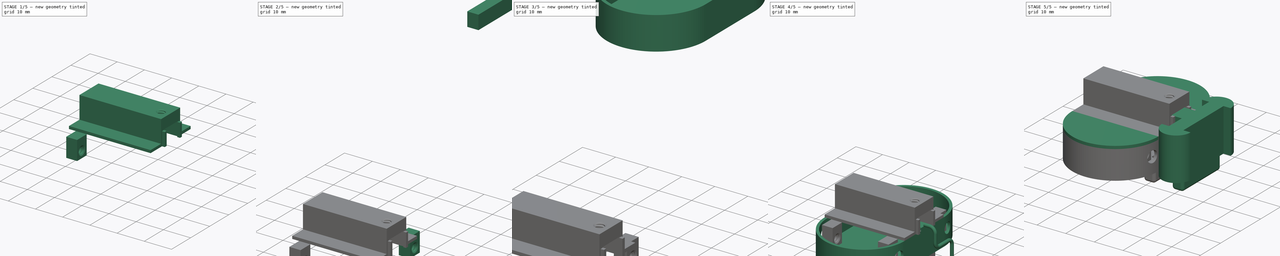
[diagram: build sequence overview — one tinted view per stage of 5, left to right]
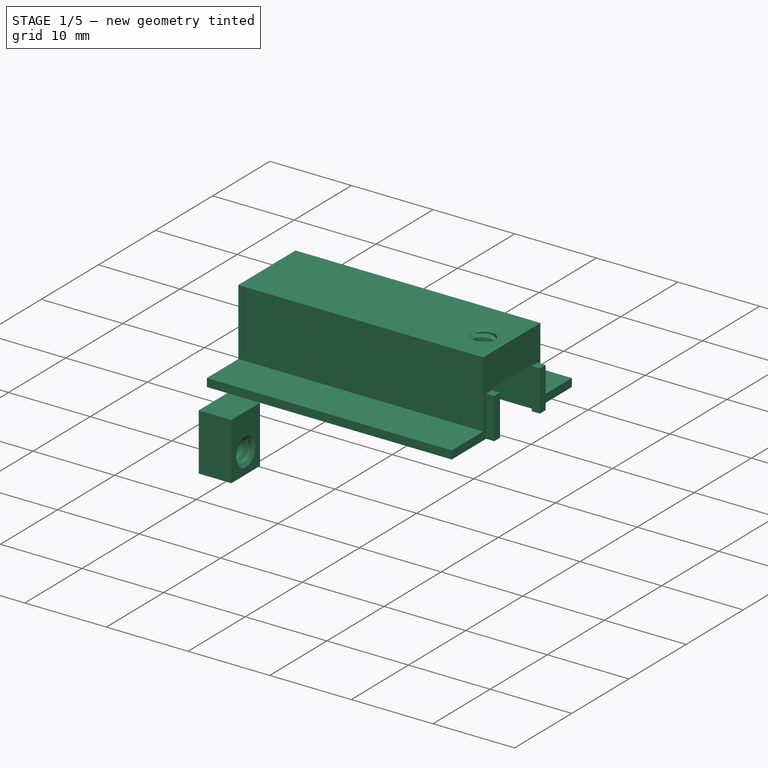
[diagram: stage 1 of 5 — iso view after this stage's code; geometry added in this stage tinted green]
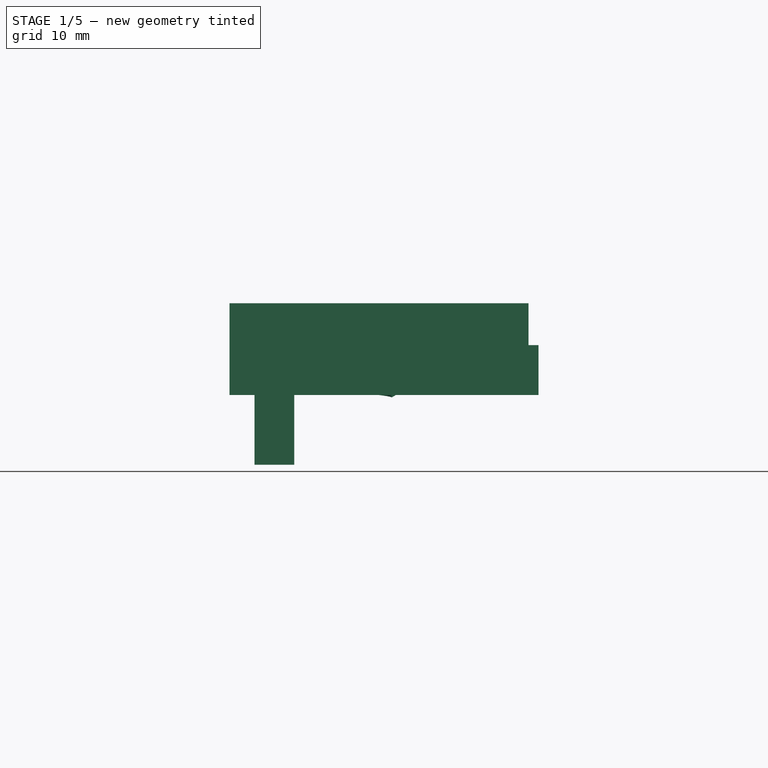
[diagram: stage 1 of 5 — front view after this stage's code; geometry added in this stage tinted green]
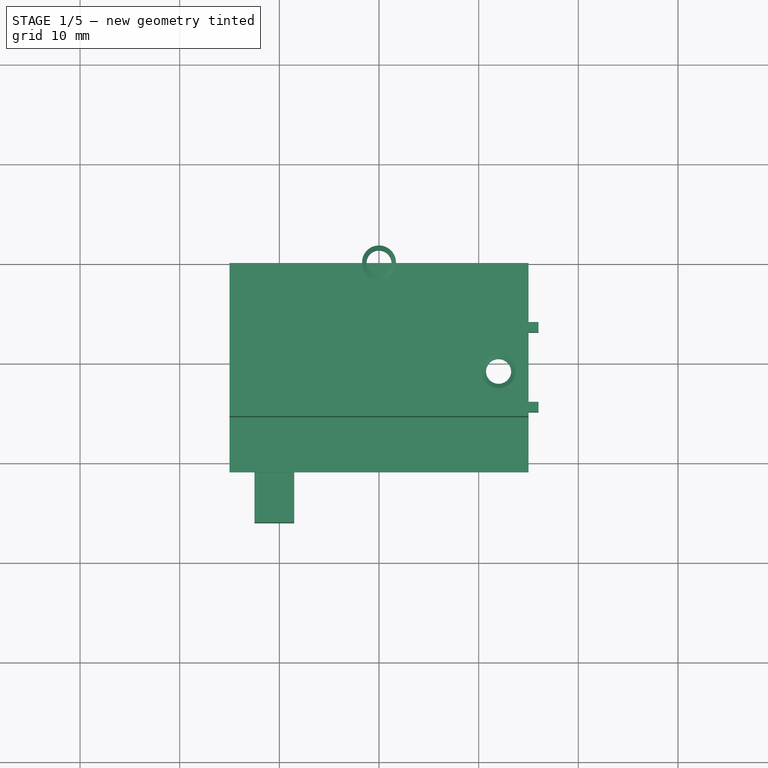
[diagram: stage 1 of 5 — top view after this stage's code; geometry added in this stage tinted green]
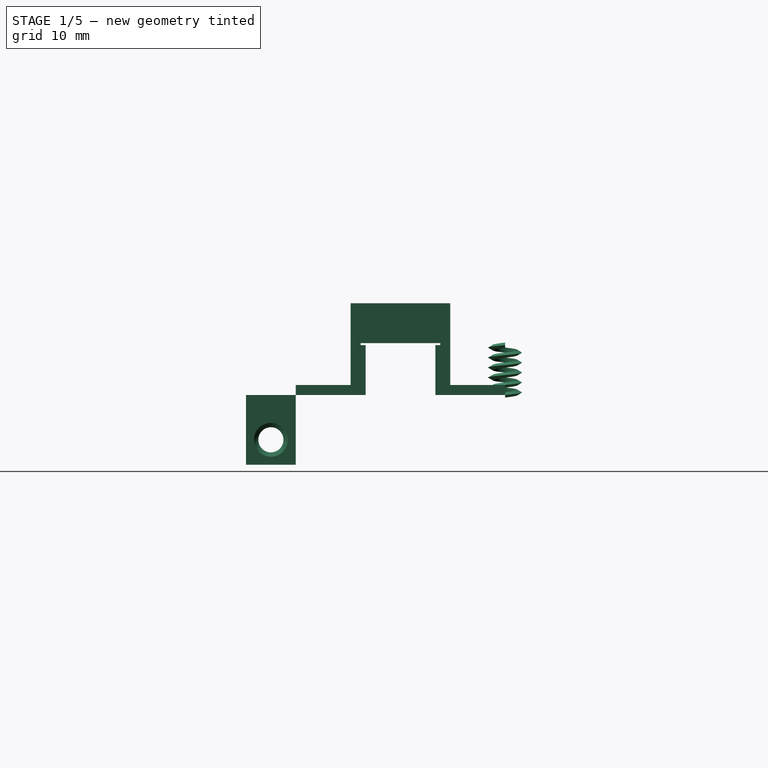
[diagram: stage 1 of 5 — right view after this stage's code; geometry added in this stage tinted green]
FCSTD DOCUMENT  (FreeCAD 0.16RUnknown)
Label: Diseño_superior2
License: All rights reserved
LicenseURL: http://en.wikipedia.org/wiki/All_rights_reserved
objects: Part::Cylinder×29, Part::Cut×29, Part::Box×18, Sketcher::SketchObject×18, Part::MultiFuse×14, Part::Sweep×9, Part::Fillet×8, Part::Helix×6, PartDesign::Revolution×5
note: 141 computed .brp shape members not serialized (recipe doc carries the construction recipe); baked Part::Feature solids carry a one-line shape summary decoded from their .brp

FEATURE [Part::Box] Box002  label="Cubo002"
  Height = 1
  Length = 30
  Placement = pos=(-15,-15.5,0) rot=(0,0,1;0rad)
  Width = 21
FEATURE [Part::Box] Box003  label="Cubo003"
  Height = 9.2
  Length = 30
  Placement = pos=(-15,-10,0) rot=(0,0,1;0rad)
  Width = 10
FEATURE [Part::Box] Box004  label="Cubo004"
  Height = 5.2
  Length = 30
  Placement = pos=(-15,-9,0) rot=(0,0,1;0rad)
  Width = 8
FEATURE [Part::MultiFuse] Fusion001
  Shapes = -> [Box002,Box003]
FEATURE [Part::Cut] Cut003
  Base = -> Fusion001
  Placement = pos=(0,-5.5,0) rot=(0,0,1;0rad)
  Tool = -> Box004
FEATURE [Part::Box] Box006  label="Cubo006"
  Height = 5
  Length = 1
  Placement = pos=(15,-7,0) rot=(0,0,1;0rad)
  Width = 1
FEATURE [Part::Box] Box005  label="Cubo005"
  Height = 5
  Length = 1
  Placement = pos=(15,-15,0) rot=(0,0,1;0rad)
  Width = 1
FEATURE [Part::Cylinder] Cylinder016  label="Cilindro016"
  Angle = 360
  Height = 10
  Placement = pos=(12,-11,4) rot=(0,0,1;0rad)
  Radius = 2
FEATURE [Part::Cut] Cut019
  Base = -> Cut003
  Tool = -> Cylinder016
FEATURE [Part::Helix] Helix025  label="Espiral025"
  Angle = 0
  Height = 5
  LocalCoord = 0
  Pitch = 1
  Radius = 1.25
  Style = 1
FEATURE [Sketcher::SketchObject] Sketch051
  Placement = pos=(0,0,0) rot=(1,0,0;1.5708rad)
  sketch-geometry (3):
    g0: LineSegment StartX=1.25 StartY=-0.259808 StartZ=0 EndX=1.25 EndY=0.259808 EndZ=0
    g1: LineSegment StartX=1.25 StartY=0.259808 StartZ=0 EndX=1.7 EndY=0 EndZ=0
    g2: LineSegment StartX=1.7 StartY=0 StartZ=0 EndX=1.25 EndY=-0.259808 EndZ=0
  constraints (9):
    c: Vertical(g0)
    c: Coincident(g0,g1)
    c: PointOnObject(g1,g-1)
    c: Coincident(g1,g2)
    c: Coincident(g2,g0)
    c: Angle(g1,g2) = 1.0472
    c: Equal(g1,g2)
    c: DistanceX(g-1,g0) = 1.25
    c: DistanceX(g-1,g1) = 1.7
FEATURE [Part::Sweep] Sweep026
  Frenet = true
  Sections = -> [Sketch051]
  Solid = true
  Spine = -> Helix025
  Transition = 1
FEATURE [Part::Box] Box065  label="Cubo065"
  Height = 7
  Length = 4
  Placement = pos=(-13.5,-5,-7) rot=(0,0,1;0rad)
  Width = 5
FEATURE [Part::Cylinder] Cylinder061  label="Cilindro061"
  Angle = 360
  Height = 6
  Placement = pos=(-14,-2.5,-4.5) rot=(0,1,0;1.5708rad)
  Radius = 2
FEATURE [Part::Cut] Cut092
  Base = -> Box065
  Placement = pos=(24,-16,0) rot=(0,0,1;0rad)
  Tool = -> Cylinder061
FEATURE [Sketcher::SketchObject] Sketch052
  Placement = pos=(0,0,0) rot=(1,0,0;1.5708rad)
  sketch-geometry (6):
    g0: LineSegment StartX=1.7 StartY=0 StartZ=0 EndX=1.26 EndY=0.254034 EndZ=0
    g1: LineSegment StartX=1.26 StartY=0.254034 StartZ=0 EndX=1.26 EndY=3.7451 EndZ=0
    g2: LineSegment StartX=1.26 StartY=3.7451 StartZ=0 EndX=1.7 EndY=3.99913 EndZ=0
    g3: LineSegment StartX=1.7 StartY=3.99913 StartZ=0 EndX=2 EndY=3.99913 EndZ=0
    g4: LineSegment StartX=2 StartY=3.99913 StartZ=0 EndX=2 EndY=0 EndZ=0
    g5: LineSegment StartX=2 StartY=0 StartZ=0 EndX=1.7 EndY=0 EndZ=0
  constraints (17):
    c: PointOnObject(g0,g-1)
    c: Coincident(g0,g1)
    c: Vertical(g1)
    c: Coincident(g1,g2)
    c: Coincident(g2,g3)
    c: Horizontal(g3)
    c: Coincident(g3,g4)
    c: PointOnObject(g4,g-1)
    c: Vertical(g4)
    c: Coincident(g4,g5)
    c: Coincident(g5,g0)
    c: Angle(g2,g3) = 2.61799
    c: Angle(g5,g0) = 2.61799
    c: Equal(g0,g2)
    c: DistanceX(g-1,g1) = 1.26
    c: DistanceX(g-1,g2) = 1.7
    c: DistanceX(g-1,g3) = 2
FEATURE [PartDesign::Revolution] Revolution022
  Angle = 360
  Axis = (0,0,1)
  Base = (0,0,0)
  Placement = pos=(0,0,0) rot=(1,0,0;1.5708rad)
  ReferenceAxis = -> Sketch052 [V_Axis]
  Reversed = true
  Sketch = -> Sketch052
FEATURE [Part::Helix] Helix026  label="Espiral026"
  Angle = 0
  Height = 5
  LocalCoord = 0
  Pitch = 1
  Radius = 1.25
  Style = 1
FEATURE [Sketcher::SketchObject] Sketch053
  Placement = pos=(0,0,0) rot=(1,0,0;1.5708rad)
  sketch-geometry (3):
    g0: LineSegment StartX=1.25 StartY=-0.259808 StartZ=0 EndX=1.25 EndY=0.259808 EndZ=0
    g1: LineSegment StartX=1.25 StartY=0.259808 StartZ=0 EndX=1.7 EndY=0 EndZ=0
    g2: LineSegment StartX=1.7 StartY=0 StartZ=0 EndX=1.25 EndY=-0.259808 EndZ=0
  constraints (9):
    c: Vertical(g0)
    c: Coincident(g0,g1)
    c: PointOnObject(g1,g-1)
    c: Coincident(g1,g2)
    c: Coincident(g2,g0)
    c: Angle(g1,g2) = 1.0472
    c: Equal(g1,g2)
    c: DistanceX(g-1,g0) = 1.25
    c: DistanceX(g-1,g1) = 1.7
FEATURE [Part::Sweep] Sweep027
  Frenet = true
  Sections = -> [Sketch053]
  Solid = true
  Spine = -> Helix026
  Transition = 1
FEATURE [Part::Cut] Cut093
  Base = -> Revolution022
  Placement = pos=(10.5,-18.5,-4.5) rot=(0,1,0;1.5708rad)
  Tool = -> Sweep027
FEATURE [Part::MultiFuse] Fusion002040
  Placement = pos=(-23,-5,0) rot=(0,0,1;0rad)
  Shapes = -> [Cut092,Cut093]
FEATURE [Sketcher::SketchObject] Sketch
  Placement = pos=(0,0,0) rot=(1,0,0;1.5708rad)
  sketch-geometry (6):
    g0: LineSegment StartX=1.7 StartY=0 StartZ=0 EndX=1.26 EndY=0.254034 EndZ=0
    g1: LineSegment StartX=1.26 StartY=0.254034 StartZ=0 EndX=1.26 EndY=3.7451 EndZ=0
    g2: LineSegment StartX=1.26 StartY=3.7451 StartZ=0 EndX=1.7 EndY=3.99913 EndZ=0
    g3: LineSegment StartX=1.7 StartY=3.99913 StartZ=0 EndX=2 EndY=3.99913 EndZ=0
    g4: LineSegment StartX=2 StartY=3.99913 StartZ=0 EndX=2 EndY=0 EndZ=0
    g5: LineSegment StartX=2 StartY=0 StartZ=0 EndX=1.7 EndY=0 EndZ=0
  constraints (17):
    c: PointOnObject(g0,g-1)
    c: Coincident(g0,g1)
    c: Vertical(g1)
    c: Coincident(g1,g2)
    c: Coincident(g2,g3)
    c: Horizontal(g3)
    c: Coincident(g3,g4)
    c: PointOnObject(g4,g-1)
    c: Vertical(g4)
    c: Coincident(g4,g5)
    c: Coincident(g5,g0)
    c: Angle(g2,g3) = 2.61799
    c: Angle(g5,g0) = 2.61799
    c: Equal(g0,g2)
    c: DistanceX(g-1,g1) = 1.26
    c: DistanceX(g-1,g2) = 1.7
    c: DistanceX(g-1,g3) = 2
FEATURE [PartDesign::Revolution] Revolution
  Angle = 360
  Axis = (0,0,1)
  Base = (0,0,0)
  Placement = pos=(0,0,0) rot=(1,0,0;1.5708rad)
  ReferenceAxis = -> Sketch [V_Axis]
  Reversed = true
  Sketch = -> Sketch
FEATURE [Part::Helix] Helix  label="Espiral"
  Angle = 0
  Height = 5
  LocalCoord = 0
  Pitch = 1
  Radius = 1.25
  Style = 1
FEATURE [Sketcher::SketchObject] Sketch001
  Placement = pos=(0,0,0) rot=(1,0,0;1.5708rad)
  sketch-geometry (3):
    g0: LineSegment StartX=1.25 StartY=-0.259808 StartZ=0 EndX=1.25 EndY=0.259808 EndZ=0
    g1: LineSegment StartX=1.25 StartY=0.259808 StartZ=0 EndX=1.7 EndY=0 EndZ=0
    g2: LineSegment StartX=1.7 StartY=0 StartZ=0 EndX=1.25 EndY=-0.259808 EndZ=0
  constraints (9):
    c: Vertical(g0)
    c: Coincident(g0,g1)
    c: PointOnObject(g1,g-1)
    c: Coincident(g1,g2)
    c: Coincident(g2,g0)
    c: Angle(g1,g2) = 1.0472
    c: Equal(g1,g2)
    c: DistanceX(g-1,g0) = 1.25
    c: DistanceX(g-1,g1) = 1.7
FEATURE [Part::Sweep] Sweep028
  Frenet = true
  Sections = -> [Sketch001]
  Solid = true
  Spine = -> Helix
  Transition = 1
FEATURE [Part::Cut] Cut094
  Base = -> Revolution
  Placement = pos=(12,-11,5.2) rot=(0,0,1;0rad)
  Tool = -> Sweep028
FEATURE [Part::MultiFuse] Fusion002041
  Shapes = -> [Cut094,Cut019]
FEATURE [Part::MultiFuse] Fusion002042
  Shapes = -> [Box006,Box005,Fusion002041]
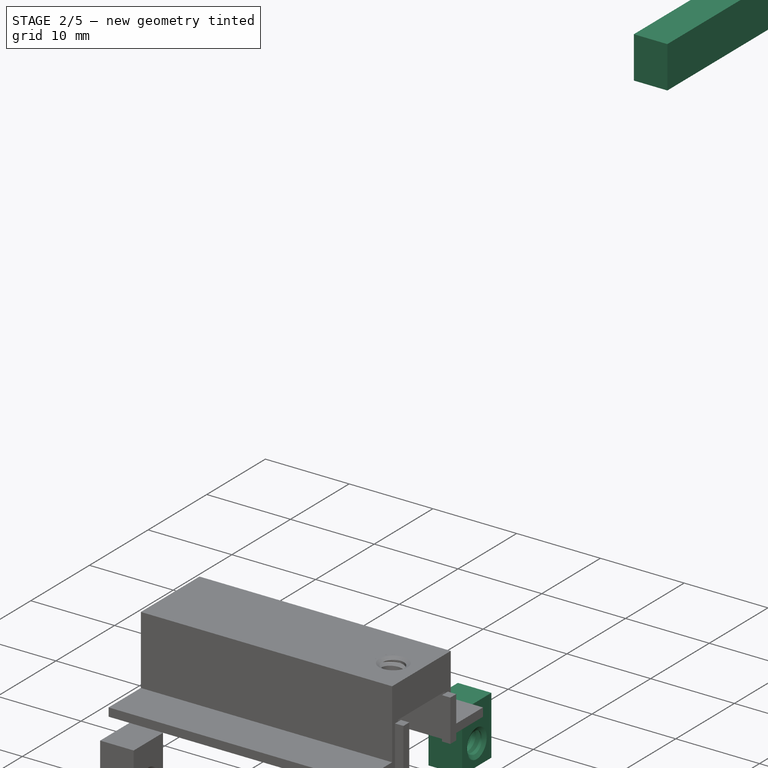
[diagram: stage 2 of 5 — iso view after this stage's code; geometry added in this stage tinted green]
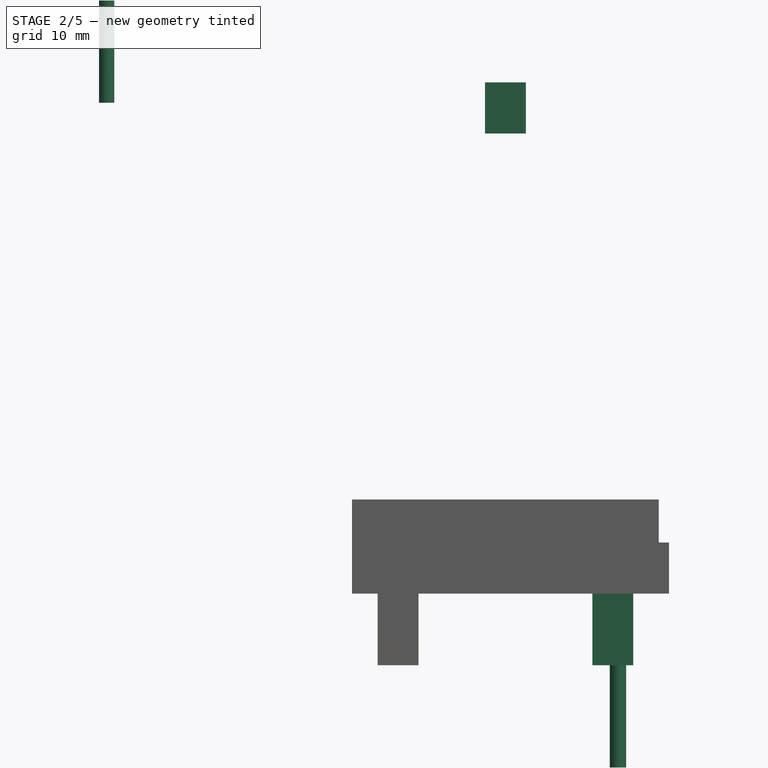
[diagram: stage 2 of 5 — front view after this stage's code; geometry added in this stage tinted green]
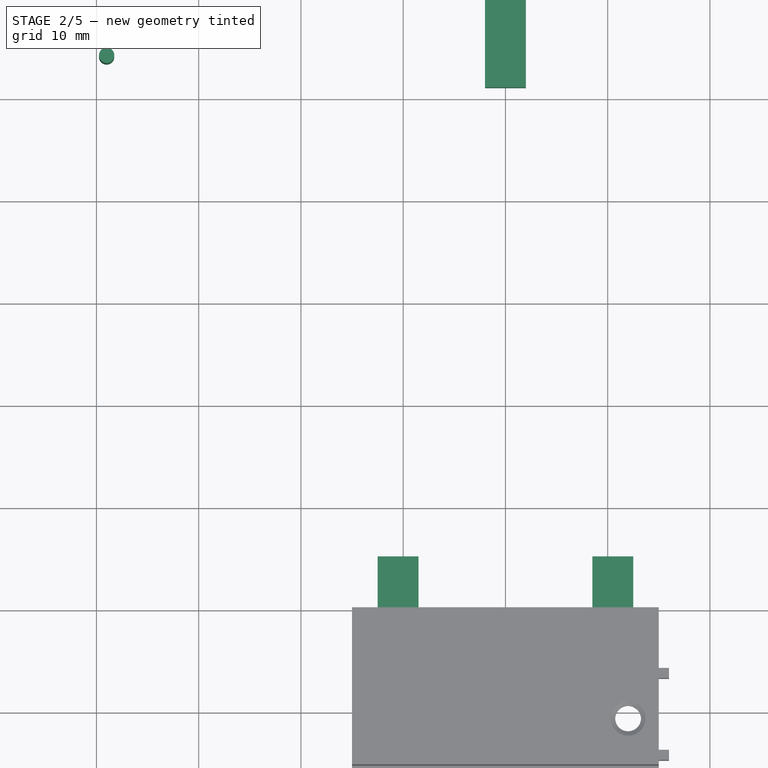
[diagram: stage 2 of 5 — top view after this stage's code; geometry added in this stage tinted green]
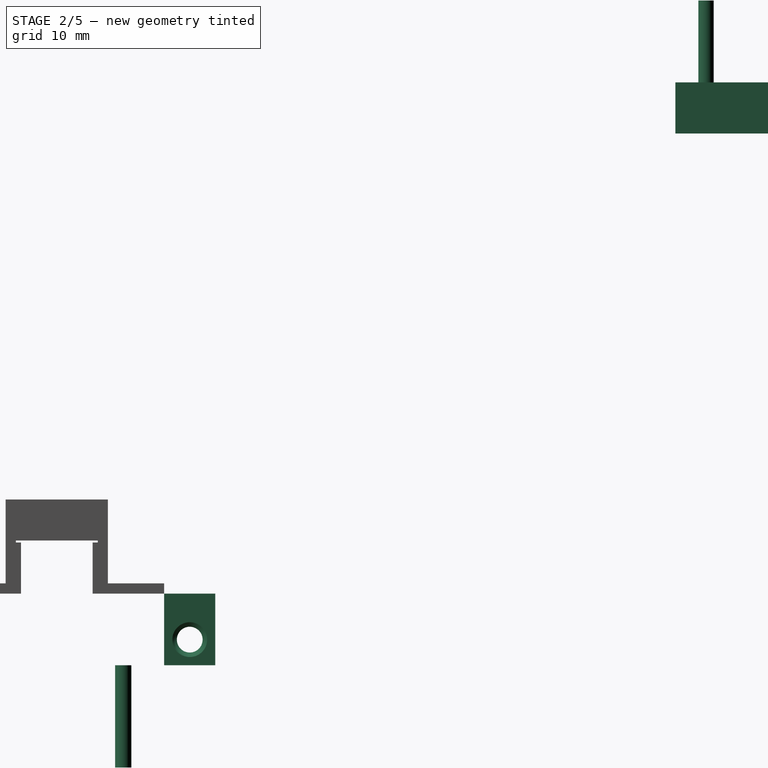
[diagram: stage 2 of 5 — right view after this stage's code; geometry added in this stage tinted green]
FEATURE [Part::Box] Box020  label="Cubo020"
  Height = 5
  Length = 4
  Placement = pos=(-2,50,45) rot=(0,0,1;0rad)
  Width = 19
FEATURE [Part::Cylinder] Cylinder046  label="Cilindro046"
  Angle = 360
  Height = 10
  Placement = pos=(-39,53,48) rot=(0,0,1;0rad)
  Radius = 0.75
FEATURE [Part::Cylinder] Cylinder050  label="Cilindro050"
  Angle = 360
  Height = 10
  Placement = pos=(11,-4,-17) rot=(0,0,1;0rad)
  Radius = 0.8
FEATURE [Part::Box] Box062  label="Cubo062"
  Height = 7
  Length = 4
  Placement = pos=(-13.5,-5,-7) rot=(0,0,1;0rad)
  Width = 5
FEATURE [Part::Cylinder] Cylinder058  label="Cilindro058"
  Angle = 360
  Height = 6
  Placement = pos=(-14,-2.5,-4.5) rot=(0,1,0;1.5708rad)
  Radius = 2
FEATURE [Part::Cut] Cut086
  Base = -> Box062
  Placement = pos=(24,-16,0) rot=(0,0,1;0rad)
  Tool = -> Cylinder058
FEATURE [Sketcher::SketchObject] Sketch046
  Placement = pos=(0,0,0) rot=(1,0,0;1.5708rad)
  sketch-geometry (6):
    g0: LineSegment StartX=1.7 StartY=0 StartZ=0 EndX=1.26 EndY=0.254034 EndZ=0
    g1: LineSegment StartX=1.26 StartY=0.254034 StartZ=0 EndX=1.26 EndY=3.7451 EndZ=0
    g2: LineSegment StartX=1.26 StartY=3.7451 StartZ=0 EndX=1.7 EndY=3.99913 EndZ=0
    g3: LineSegment StartX=1.7 StartY=3.99913 StartZ=0 EndX=2 EndY=3.99913 EndZ=0
    g4: LineSegment StartX=2 StartY=3.99913 StartZ=0 EndX=2 EndY=0 EndZ=0
    g5: LineSegment StartX=2 StartY=0 StartZ=0 EndX=1.7 EndY=0 EndZ=0
  constraints (17):
    c: PointOnObject(g0,g-1)
    c: Coincident(g0,g1)
    c: Vertical(g1)
    c: Coincident(g1,g2)
    c: Coincident(g2,g3)
    c: Horizontal(g3)
    c: Coincident(g3,g4)
    c: PointOnObject(g4,g-1)
    c: Vertical(g4)
    c: Coincident(g4,g5)
    c: Coincident(g5,g0)
    c: Angle(g2,g3) = 2.61799
    c: Angle(g5,g0) = 2.61799
    c: Equal(g0,g2)
    c: DistanceX(g-1,g1) = 1.26
    c: DistanceX(g-1,g2) = 1.7
    c: DistanceX(g-1,g3) = 2
FEATURE [PartDesign::Revolution] Revolution019
  Angle = 360
  Axis = (0,0,1)
  Base = (0,0,0)
  Placement = pos=(0,0,0) rot=(1,0,0;1.5708rad)
  ReferenceAxis = -> Sketch046 [V_Axis]
  Reversed = true
  Sketch = -> Sketch046
FEATURE [Part::Helix] Helix023  label="Espiral023"
  Angle = 0
  Height = 5
  LocalCoord = 0
  Pitch = 1
  Radius = 1.25
  Style = 1
FEATURE [Sketcher::SketchObject] Sketch047
  Placement = pos=(0,0,0) rot=(1,0,0;1.5708rad)
  sketch-geometry (3):
    g0: LineSegment StartX=1.25 StartY=-0.259808 StartZ=0 EndX=1.25 EndY=0.259808 EndZ=0
    g1: LineSegment StartX=1.25 StartY=0.259808 StartZ=0 EndX=1.7 EndY=0 EndZ=0
    g2: LineSegment StartX=1.7 StartY=0 StartZ=0 EndX=1.25 EndY=-0.259808 EndZ=0
  constraints (9):
    c: Vertical(g0)
    c: Coincident(g0,g1)
    c: PointOnObject(g1,g-1)
    c: Coincident(g1,g2)
    c: Coincident(g2,g0)
    c: Angle(g1,g2) = 1.0472
    c: Equal(g1,g2)
    c: DistanceX(g-1,g0) = 1.25
    c: DistanceX(g-1,g1) = 1.7
FEATURE [Part::Sweep] Sweep024
  Frenet = true
  Sections = -> [Sketch047]
  Solid = true
  Spine = -> Helix023
  Transition = 1
FEATURE [Part::Cut] Cut087
  Base = -> Revolution019
  Placement = pos=(10.5,-18.5,-4.5) rot=(0,1,0;1.5708rad)
  Tool = -> Sweep024
FEATURE [Part::MultiFuse] Fusion002037
  Placement = pos=(-23,21,0) rot=(0,0,1;0rad)
  Shapes = -> [Cut086,Cut087]
FEATURE [Part::Box] Box063  label="Cubo063"
  Height = 7
  Length = 4
  Placement = pos=(-13.5,-5,-7) rot=(0,0,1;0rad)
  Width = 5
FEATURE [Part::Cylinder] Cylinder059  label="Cilindro059"
  Angle = 360
  Height = 6
  Placement = pos=(-14,-2.5,-4.5) rot=(0,1,0;1.5708rad)
  Radius = 2
FEATURE [Part::Cut] Cut088
  Base = -> Box063
  Placement = pos=(24,-16,0) rot=(0,0,1;0rad)
  Tool = -> Cylinder059
FEATURE [Sketcher::SketchObject] Sketch048
  Placement = pos=(0,0,0) rot=(1,0,0;1.5708rad)
  sketch-geometry (6):
    g0: LineSegment StartX=1.7 StartY=0 StartZ=0 EndX=1.26 EndY=0.254034 EndZ=0
    g1: LineSegment StartX=1.26 StartY=0.254034 StartZ=0 EndX=1.26 EndY=3.7451 EndZ=0
    g2: LineSegment StartX=1.26 StartY=3.7451 StartZ=0 EndX=1.7 EndY=3.99913 EndZ=0
    g3: LineSegment StartX=1.7 StartY=3.99913 StartZ=0 EndX=2 EndY=3.99913 EndZ=0
    g4: LineSegment StartX=2 StartY=3.99913 StartZ=0 EndX=2 EndY=0 EndZ=0
    g5: LineSegment StartX=2 StartY=0 StartZ=0 EndX=1.7 EndY=0 EndZ=0
  constraints (17):
    c: PointOnObject(g0,g-1)
    c: Coincident(g0,g1)
    c: Vertical(g1)
    c: Coincident(g1,g2)
    c: Coincident(g2,g3)
    c: Horizontal(g3)
    c: Coincident(g3,g4)
    c: PointOnObject(g4,g-1)
    c: Vertical(g4)
    c: Coincident(g4,g5)
    c: Coincident(g5,g0)
    c: Angle(g2,g3) = 2.61799
    c: Angle(g5,g0) = 2.61799
    c: Equal(g0,g2)
    c: DistanceX(g-1,g1) = 1.26
    c: DistanceX(g-1,g2) = 1.7
    c: DistanceX(g-1,g3) = 2
FEATURE [PartDesign::Revolution] Revolution020
  Angle = 360
  Axis = (0,0,1)
  Base = (0,0,0)
  Placement = pos=(0,0,0) rot=(1,0,0;1.5708rad)
  ReferenceAxis = -> Sketch048 [V_Axis]
  Reversed = true
  Sketch = -> Sketch048
FEATURE [Part::Helix] Helix024  label="Espiral024"
  Angle = 0
  Height = 5
  LocalCoord = 0
  Pitch = 1
  Radius = 1.25
  Style = 1
FEATURE [Sketcher::SketchObject] Sketch049
  Placement = pos=(0,0,0) rot=(1,0,0;1.5708rad)
  sketch-geometry (3):
    g0: LineSegment StartX=1.25 StartY=-0.259808 StartZ=0 EndX=1.25 EndY=0.259808 EndZ=0
    g1: LineSegment StartX=1.25 StartY=0.259808 StartZ=0 EndX=1.7 EndY=0 EndZ=0
    g2: LineSegment StartX=1.7 StartY=0 StartZ=0 EndX=1.25 EndY=-0.259808 EndZ=0
  constraints (9):
    c: Vertical(g0)
    c: Coincident(g0,g1)
    c: PointOnObject(g1,g-1)
    c: Coincident(g1,g2)
    c: Coincident(g2,g0)
    c: Angle(g1,g2) = 1.0472
    c: Equal(g1,g2)
    c: DistanceX(g-1,g0) = 1.25
    c: DistanceX(g-1,g1) = 1.7
FEATURE [Part::Sweep] Sweep025
  Frenet = true
  Sections = -> [Sketch049]
  Solid = true
  Spine = -> Helix024
  Transition = 1
FEATURE [Part::Cut] Cut089
  Base = -> Revolution020
  Placement = pos=(10.5,-18.5,-4.5) rot=(0,1,0;1.5708rad)
  Tool = -> Sweep025
FEATURE [Part::MultiFuse] Fusion002038
  Placement = pos=(-2,21,0) rot=(0,0,1;0rad)
  Shapes = -> [Cut088,Cut089]
FEATURE [Part::Box] Box064  label="Cubo064"
  Height = 7
  Length = 4
  Placement = pos=(-13.5,-5,-7) rot=(0,0,1;0rad)
  Width = 5
FEATURE [Part::Cylinder] Cylinder060  label="Cilindro060"
  Angle = 360
  Height = 6
  Placement = pos=(-14,-2.5,-4.5) rot=(0,1,0;1.5708rad)
  Radius = 2
FEATURE [Part::Cut] Cut090
  Base = -> Box064
  Placement = pos=(24,-16,0) rot=(0,0,1;0rad)
  Tool = -> Cylinder060
FEATURE [Sketcher::SketchObject] Sketch050
  Placement = pos=(0,0,0) rot=(1,0,0;1.5708rad)
  sketch-geometry (6):
    g0: LineSegment StartX=1.7 StartY=0 StartZ=0 EndX=1.26 EndY=0.254034 EndZ=0
    g1: LineSegment StartX=1.26 StartY=0.254034 StartZ=0 EndX=1.26 EndY=3.7451 EndZ=0
    g2: LineSegment StartX=1.26 StartY=3.7451 StartZ=0 EndX=1.7 EndY=3.99913 EndZ=0
    g3: LineSegment StartX=1.7 StartY=3.99913 StartZ=0 EndX=2 EndY=3.99913 EndZ=0
    g4: LineSegment StartX=2 StartY=3.99913 StartZ=0 EndX=2 EndY=0 EndZ=0
    g5: LineSegment StartX=2 StartY=0 StartZ=0 EndX=1.7 EndY=0 EndZ=0
  constraints (17):
    c: PointOnObject(g0,g-1)
    c: Coincident(g0,g1)
    c: Vertical(g1)
    c: Coincident(g1,g2)
    c: Coincident(g2,g3)
    c: Horizontal(g3)
    c: Coincident(g3,g4)
    c: PointOnObject(g4,g-1)
    c: Vertical(g4)
    c: Coincident(g4,g5)
    c: Coincident(g5,g0)
    c: Angle(g2,g3) = 2.61799
    c: Angle(g5,g0) = 2.61799
    c: Equal(g0,g2)
    c: DistanceX(g-1,g1) = 1.26
    c: DistanceX(g-1,g2) = 1.7
    c: DistanceX(g-1,g3) = 2
FEATURE [PartDesign::Revolution] Revolution021
  Angle = 360
  Axis = (0,0,1)
  Base = (0,0,0)
  Placement = pos=(0,0,0) rot=(1,0,0;1.5708rad)
  ReferenceAxis = -> Sketch050 [V_Axis]
  Reversed = true
  Sketch = -> Sketch050
FEATURE [Part::Cut] Cut091
  Base = -> Revolution021
  Placement = pos=(10.5,-18.5,-4.5) rot=(0,1,0;1.5708rad)
  Tool = -> Sweep026
FEATURE [Part::MultiFuse] Fusion002039
  Placement = pos=(-2,-5,0) rot=(0,0,1;0rad)
  Shapes = -> [Cut090,Cut091]
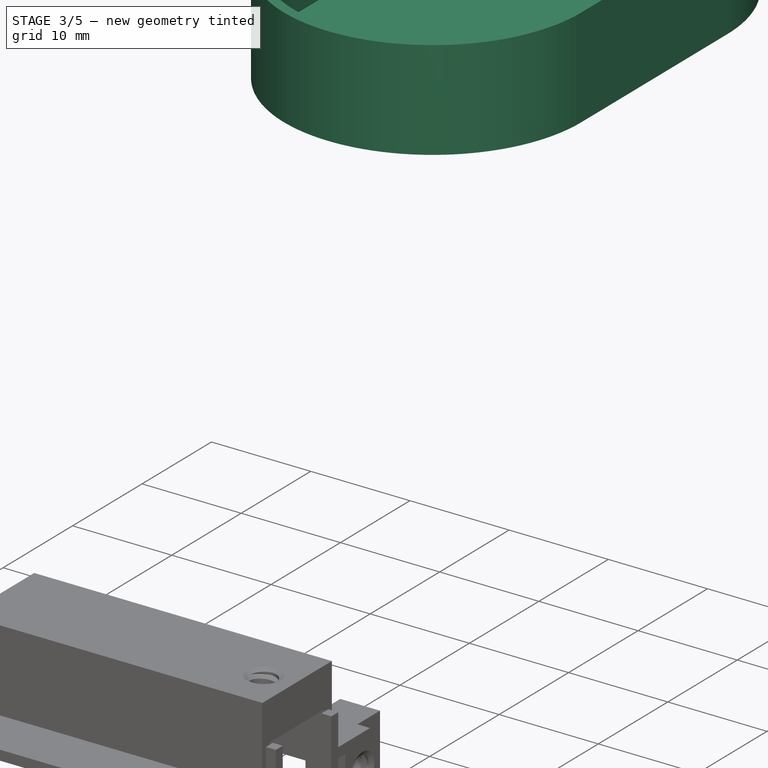
[diagram: stage 3 of 5 — iso view after this stage's code; geometry added in this stage tinted green]
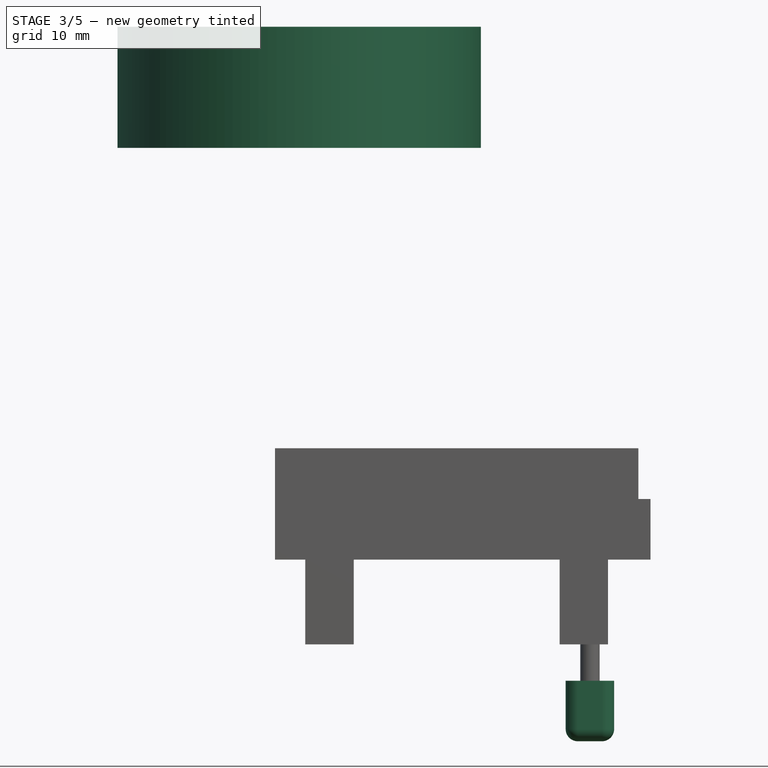
[diagram: stage 3 of 5 — front view after this stage's code; geometry added in this stage tinted green]
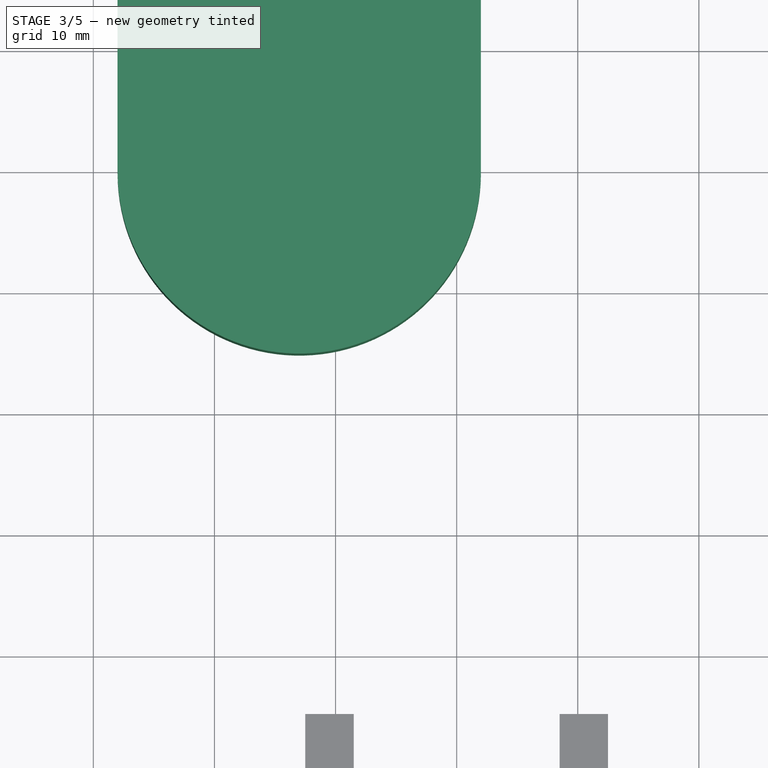
[diagram: stage 3 of 5 — top view after this stage's code; geometry added in this stage tinted green]
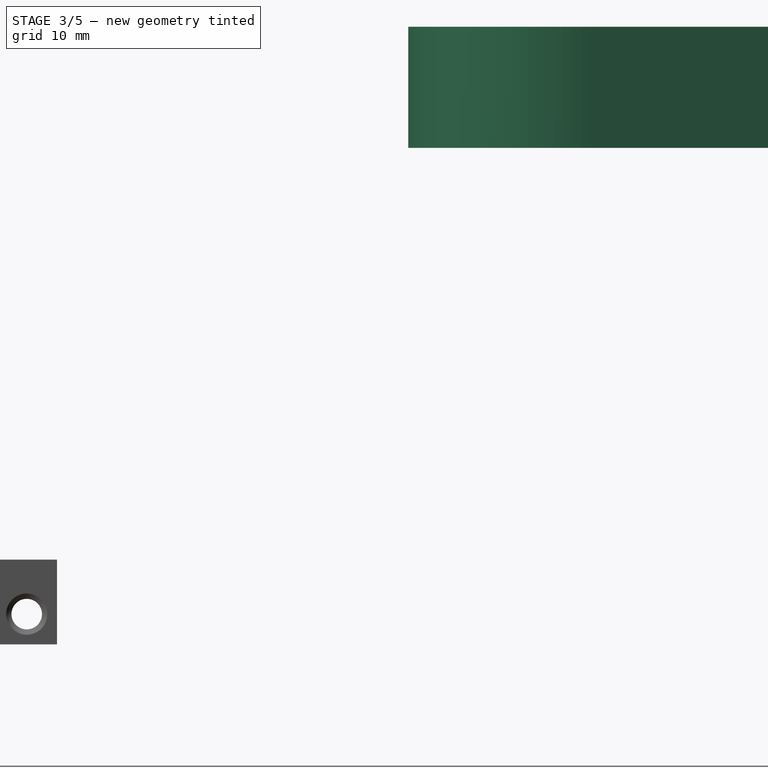
[diagram: stage 3 of 5 — right view after this stage's code; geometry added in this stage tinted green]
FEATURE [Part::Cylinder] Cylinder003  label="Cilindro003"
  Angle = 180
  Height = 8
  Placement = pos=(13,70,-36) rot=(0,1,0;3.14159rad)
  Radius = 14
FEATURE [Part::Cylinder] Cylinder  label="Cilindro"
  Angle = 180
  Height = 10
  Placement = pos=(13,70,-34) rot=(0,1,0;3.14159rad)
  Radius = 15
FEATURE [Part::Cylinder] Cylinder002  label="Cilindro002"
  Angle = 180
  Height = 8
  Placement = pos=(16,49,-36) rot=(1,0,0;3.14159rad)
  Radius = 14
FEATURE [Part::Cylinder] Cylinder001  label="Cilindro001"
  Angle = 180
  Height = 10
  Placement = pos=(16,49,-34) rot=(1,0,0;3.14159rad)
  Radius = 15
FEATURE [Part::Box] Box001  label="Cubo001"
  Height = 8
  Length = 28
  Placement = pos=(-1,49,-44) rot=(0,0,1;0rad)
  Width = 21
FEATURE [Part::Box] Box  label="Cubo"
  Height = 10
  Length = 30
  Placement = pos=(-2,49,-44) rot=(0,0,1;0rad)
  Width = 21
FEATURE [Part::Cut] Cut002
  Base = -> Cylinder
  Tool = -> Cylinder003
FEATURE [Part::Cut] Cut001
  Base = -> Cylinder001
  Placement = pos=(-3,0,0) rot=(0,0,1;0rad)
  Tool = -> Cylinder002
FEATURE [Part::Cut] Cut
  Base = -> Box
  Tool = -> Box001
FEATURE [Part::MultiFuse] Fusion
  Placement = pos=(0,0,0) rot=(0,1,0;3.14159rad)
  Shapes = -> [Cut,Cut001,Cut002]
FEATURE [Part::Cylinder] Cylinder017  label="Cilindro017"
  Angle = 360
  Height = 10
  Placement = pos=(-14,90,38.5) rot=(1,0,0;1.5708rad)
  Radius = 1
FEATURE [Part::Fillet] Fillet008
  Base = -> Box020
  Edges = 1 edges r=1: [Edge6]
FEATURE [Part::Fillet] Fillet009
  Base = -> Fillet008
  Edges = 1 edges r=1: [Edge15]
FEATURE [Part::Fillet] Fillet010
  Base = -> Fillet009
  Edges = 1 edges r=1: [Edge7]
FEATURE [Part::Fillet] Fillet011
  Base = -> Fillet010
  Edges = 1 edges r=1: [Edge3]
  Placement = pos=(-39,0,0) rot=(0,0,1;0rad)
FEATURE [Part::Cylinder] Cylinder047  label="Cilindro047"
  Angle = 360
  Height = 10
  Placement = pos=(-39,66,48) rot=(0,0,1;0rad)
  Radius = 0.75
FEATURE [Part::Cut] Cut065
  Base = -> Fillet011
  Tool = -> Cylinder046
FEATURE [Part::Cut] Cut066
  Base = -> Cut065
  Placement = pos=(-28,-70,35) rot=(0,1,0;3.14159rad)
  Tool = -> Cylinder047
FEATURE [Part::Cylinder] Cylinder048  label="Cilindro048"
  Angle = 360
  Height = 10
  Placement = pos=(11,-4,-15) rot=(0,0,1;0rad)
  Radius = 0.8
FEATURE [Part::Cylinder] Cylinder051  label="Cilindro051"
  Angle = 360
  Height = 10
  Placement = pos=(11,-17,-17) rot=(0,0,1;0rad)
  Radius = 0.8
FEATURE [Part::Cut] Cut069
  Base = -> Cut066
  Tool = -> Cylinder050
FEATURE [Part::Cut] Cut070
  Base = -> Cut069
  Tool = -> Cylinder051
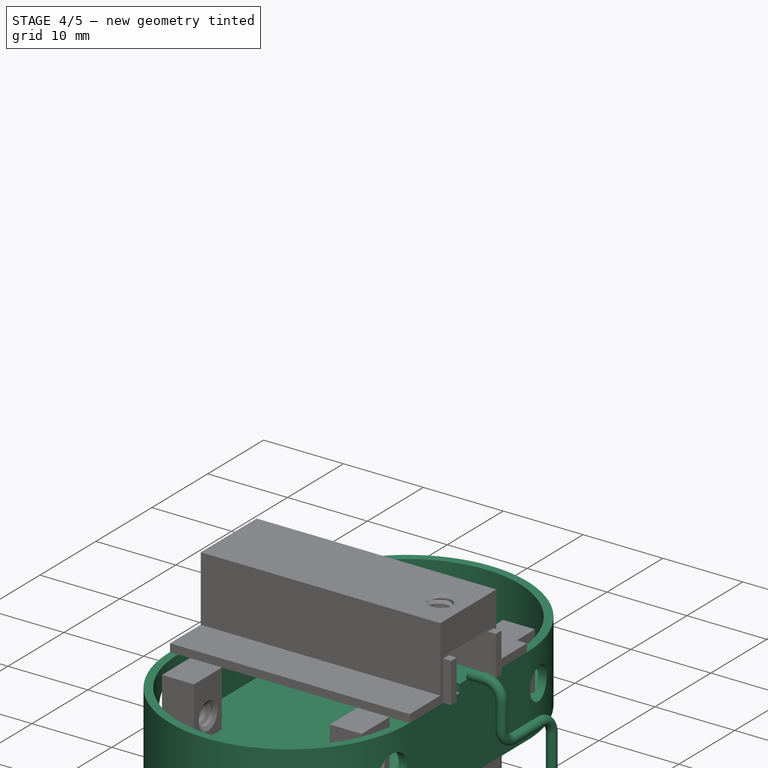
[diagram: stage 4 of 5 — iso view after this stage's code; geometry added in this stage tinted green]
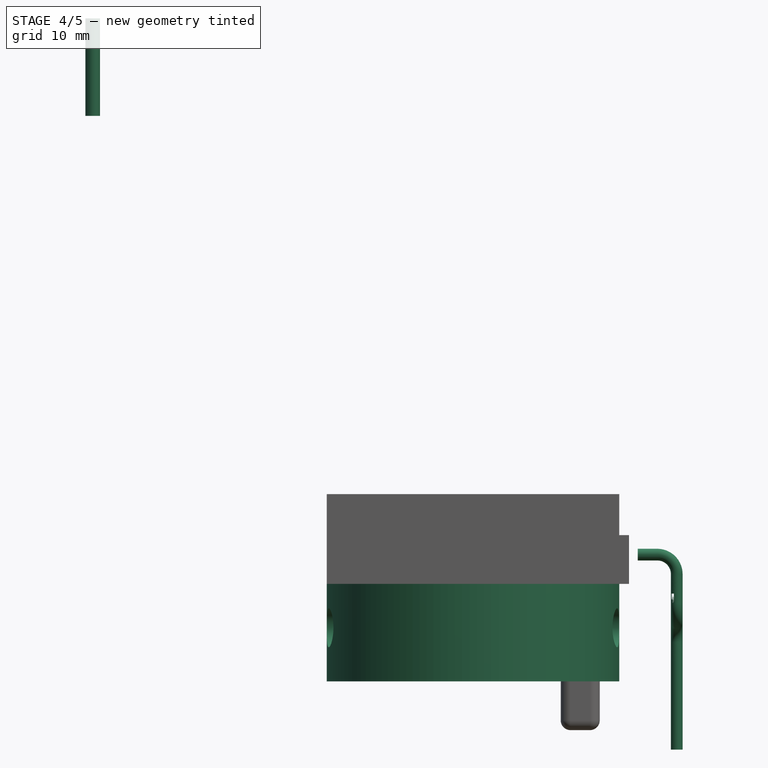
[diagram: stage 4 of 5 — front view after this stage's code; geometry added in this stage tinted green]
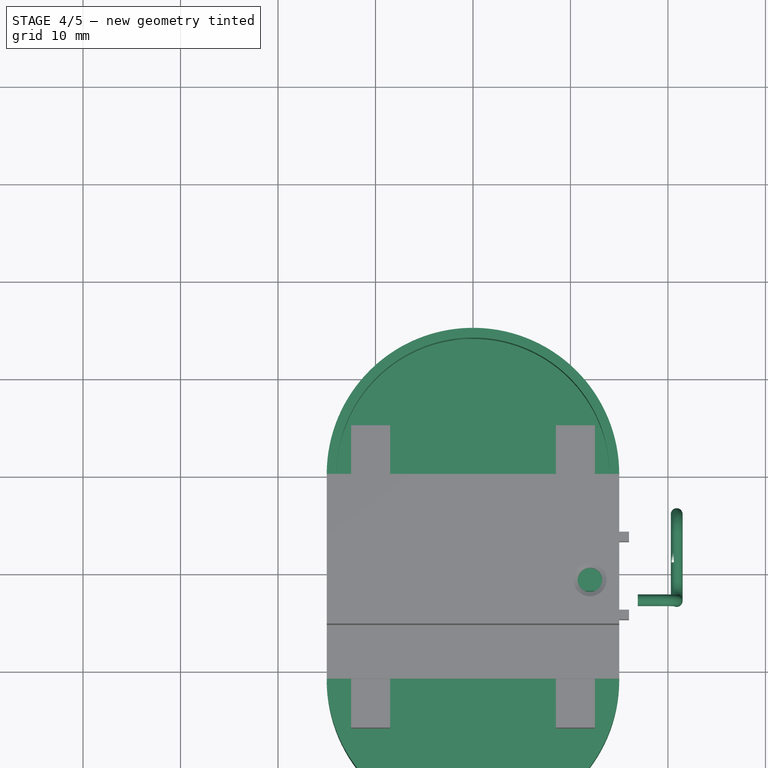
[diagram: stage 4 of 5 — top view after this stage's code; geometry added in this stage tinted green]
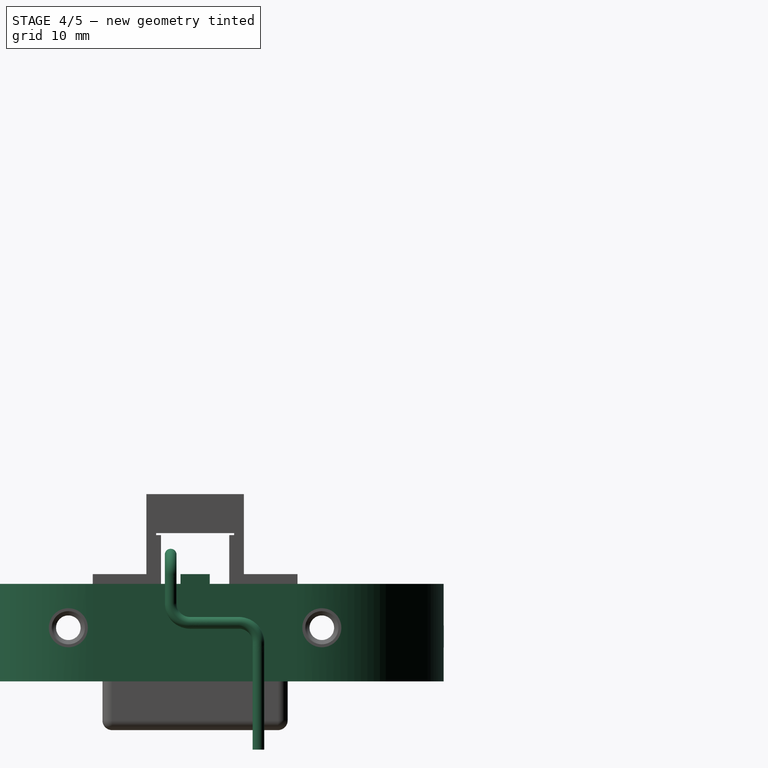
[diagram: stage 4 of 5 — right view after this stage's code; geometry added in this stage tinted green]
FEATURE [Part::Box] Box007  label="Cubo007"
  Height = 1
  Length = 30
  Placement = pos=(-28,58,44) rot=(0,0,1;0rad)
  Width = 3
FEATURE [Part::Box] Box014  label="Cubo014"
  Height = 3
  Length = 28
  Placement = pos=(-27,58,41) rot=(0,0,1;0rad)
  Width = 3
FEATURE [Part::Cylinder] Cylinder011  label="Cilindro011"
  Angle = 360
  Height = 10
  Placement = pos=(-32,72.5,39.5) rot=(0,1,0;1.5708rad)
  Radius = 2
FEATURE [Part::Cylinder] Cylinder013  label="Cilindro013"
  Angle = 360
  Height = 10
  Placement = pos=(-32,46.5,39.5) rot=(0,1,0;1.5708rad)
  Radius = 2
FEATURE [Part::Cylinder] Cylinder014  label="Cilindro014"
  Angle = 360
  Height = 10
  Placement = pos=(-5,46.5,39.5) rot=(0,1,0;1.5708rad)
  Radius = 2
FEATURE [Part::Cylinder] Cylinder015  label="Cilindro015"
  Angle = 360
  Height = 10
  Placement = pos=(-5,72.5,39.5) rot=(0,1,0;1.5708rad)
  Radius = 2
FEATURE [Part::Helix] Helix005  label="Espiral005"
  Angle = 0
  Height = 5
  LocalCoord = 0
  Pitch = 1
  Radius = 1.25
  Style = 1
FEATURE [Part::Cut] Cut021
  Base = -> Fusion
  Tool = -> Cylinder015
FEATURE [Part::Cut] Cut022
  Base = -> Cut021
  Tool = -> Cylinder013
FEATURE [Part::Cut] Cut023
  Base = -> Cut022
  Tool = -> Cylinder014
FEATURE [Part::Cut] Cut024
  Base = -> Cut023
  Tool = -> Cylinder011
FEATURE [Part::MultiFuse] Fusion002010
  Shapes = -> [Box007,Box014]
FEATURE [Part::Cut] Cut025
  Base = -> Cut024
  Tool = -> Cylinder017
FEATURE [Part::Cylinder] Cylinder042  label="Cilindro042"
  Angle = 360
  Height = 10
  Placement = pos=(-39,53,48) rot=(0,0,1;0rad)
  Radius = 0.75
FEATURE [Sketcher::SketchObject] Sketch013
  sketch-geometry (3):
    g0: LineSegment StartX=0 StartY=0 StartZ=0 EndX=2.00001 EndY=0 EndZ=0
    g1: LineSegment StartX=3.9994 StartY=1.99872 StartZ=0 EndX=3.9994 EndY=3.99963 EndZ=0
    g2: ArcOfCircle CenterX=1.99995 CenterY=1.99946 CenterZ=0 NormalX=0 NormalY=0 NormalZ=1 Radius=1.99946 StartAngle=4.71242 EndAngle=6.28282
  constraints (5):
    c: Coincident(g0,g-1)
    c: PointOnObject(g0,g-1)
    c: Vertical(g1)
    c: Coincident(g2,g1)
    c: Coincident(g2,g0)
FEATURE [Sketcher::SketchObject] Sketch014
  Placement = pos=(0,0,0) rot=(0.57735,0.57735,0.57735;2.0944rad)
  sketch-geometry (1):
    g0: Circle CenterX=0 CenterY=0 CenterZ=0 NormalX=0 NormalY=0 NormalZ=1 Radius=0.6
  constraints (2):
    c: Coincident(g0,g-1)
    c: Radius(g0) = 0.6
FEATURE [Part::Sweep] Sweep006
  Frenet = false
  Placement = pos=(18,-13,3) rot=(-1,0,0;1.5708rad)
  Sections = -> [Sketch014]
  Solid = true
  Spine = -> Sketch013
  Transition = 1
FEATURE [Sketcher::SketchObject] Sketch015
  sketch-geometry (3):
    g0: LineSegment StartX=0 StartY=0 StartZ=0 EndX=2.00001 EndY=0 EndZ=0
    g1: LineSegment StartX=3.9994 StartY=1.99872 StartZ=0 EndX=3.9994 EndY=3.99963 EndZ=0
    g2: ArcOfCircle CenterX=1.99995 CenterY=1.99946 CenterZ=0 NormalX=0 NormalY=0 NormalZ=1 Radius=1.99946 StartAngle=4.71242 EndAngle=6.28282
  constraints (5):
    c: Coincident(g0,g-1)
    c: PointOnObject(g0,g-1)
    c: Vertical(g1)
    c: Coincident(g2,g1)
    c: Coincident(g2,g0)
FEATURE [Sketcher::SketchObject] Sketch016
  Placement = pos=(0,0,0) rot=(0.57735,0.57735,0.57735;2.0944rad)
  sketch-geometry (1):
    g0: Circle CenterX=0 CenterY=0 CenterZ=0 NormalX=0 NormalY=0 NormalZ=1 Radius=0.6
  constraints (2):
    c: Coincident(g0,g-1)
    c: Radius(g0) = 0.6
FEATURE [Part::Sweep] Sweep007
  Frenet = false
  Placement = pos=(22,-13,0) rot=(0,1,0;1.5708rad)
  Sections = -> [Sketch016]
  Solid = true
  Spine = -> Sketch015
  Transition = 1
FEATURE [Sketcher::SketchObject] Sketch017
  sketch-geometry (3):
    g0: LineSegment StartX=0 StartY=0 StartZ=0 EndX=2.00001 EndY=0 EndZ=0
    g1: LineSegment StartX=3.9994 StartY=1.99872 StartZ=0 EndX=3.9994 EndY=3.99963 EndZ=0
    g2: ArcOfCircle CenterX=1.99995 CenterY=1.99946 CenterZ=0 NormalX=0 NormalY=0 NormalZ=1 Radius=1.99946 StartAngle=4.71242 EndAngle=6.28282
  constraints (5):
    c: Coincident(g0,g-1)
    c: PointOnObject(g0,g-1)
    c: Vertical(g1)
    c: Coincident(g2,g1)
    c: Coincident(g2,g0)
FEATURE [Sketcher::SketchObject] Sketch018
  Placement = pos=(0,0,0) rot=(0.57735,0.57735,0.57735;2.0944rad)
  sketch-geometry (1):
    g0: Circle CenterX=0 CenterY=0 CenterZ=0 NormalX=0 NormalY=0 NormalZ=1 Radius=0.6
  constraints (2):
    c: Coincident(g0,g-1)
    c: Radius(g0) = 0.6
FEATURE [Part::Sweep] Sweep008
  Frenet = false
  Placement = pos=(22,-8,-4) rot=(-0.577266,-0.577392,0.577392;2.0944rad)
  Sections = -> [Sketch018]
  Solid = true
  Spine = -> Sketch017
  Transition = 1
FEATURE [Part::Cylinder] Cylinder044  label="Cilindro044"
  Angle = 360
  Height = 2
  Placement = pos=(22,-8,-4) rot=(1,0,0;1.5708rad)
  Radius = 0.6
FEATURE [Part::Cylinder] Cylinder045  label="Cilindro045"
  Angle = 360
  Height = 10
  Placement = pos=(22,-4,-17) rot=(0,0,1;0rad)
  Radius = 0.6
FEATURE [Part::MultiFuse] Fusion002014
  Placement = pos=(-1.1,0,0) rot=(0,0,1;0rad)
  Shapes = -> [Sweep008,Cylinder045,Cylinder044,Sweep007,Sweep006]
FEATURE [Part::MultiFuse] Fusion002015
  Placement = pos=(13,-70,-44) rot=(0,0,1;0rad)
  Shapes = -> [Fusion002010,Cut025]
FEATURE [Part::Cylinder] Cylinder049  label="Cilindro049"
  Angle = 360
  Height = 10
  Placement = pos=(11,-17,-15) rot=(0,0,1;0rad)
  Radius = 0.8
FEATURE [Part::Cut] Cut067
  Base = -> Fusion002015
  Tool = -> Cylinder048
FEATURE [Part::Cut] Cut068
  Base = -> Cut067
  Tool = -> Cylinder049
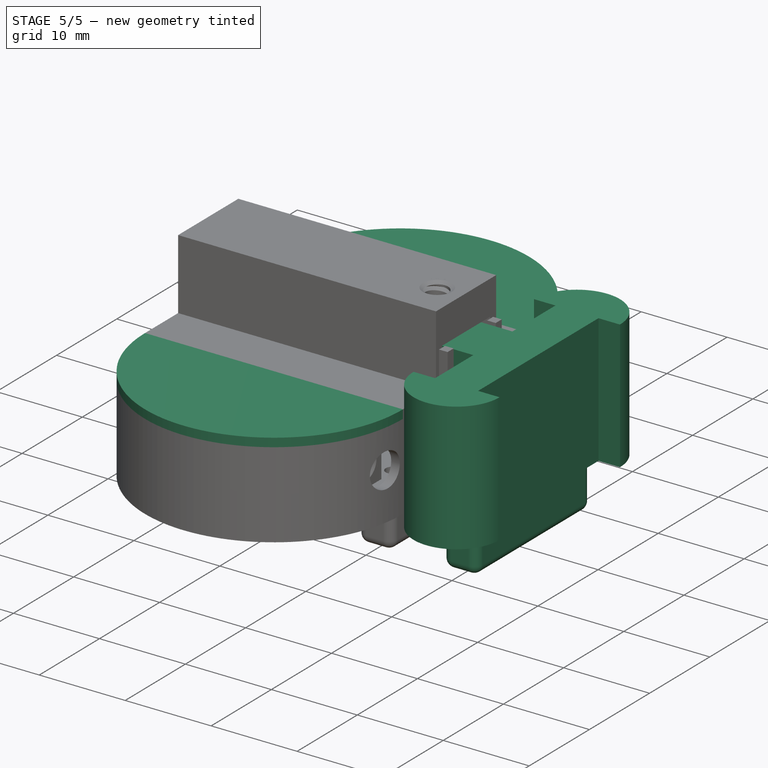
[diagram: stage 5 of 5 — iso view after this stage's code; geometry added in this stage tinted green]
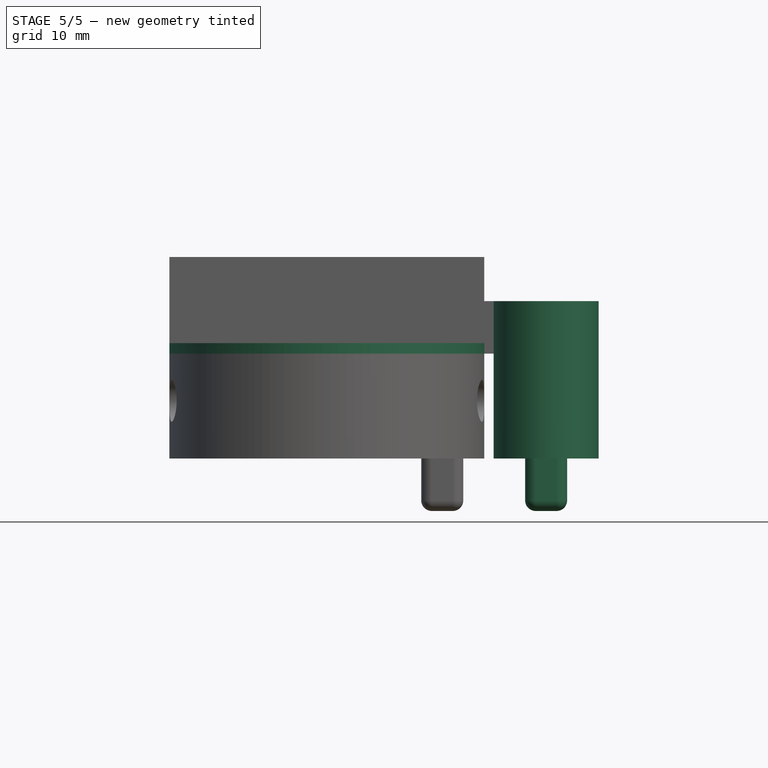
[diagram: stage 5 of 5 — front view after this stage's code; geometry added in this stage tinted green]
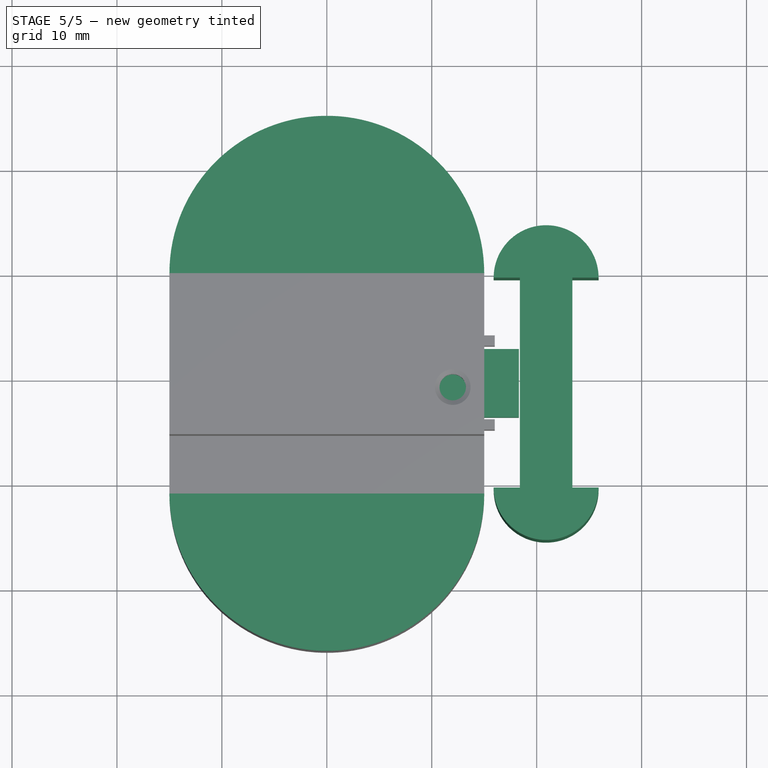
[diagram: stage 5 of 5 — top view after this stage's code; geometry added in this stage tinted green]
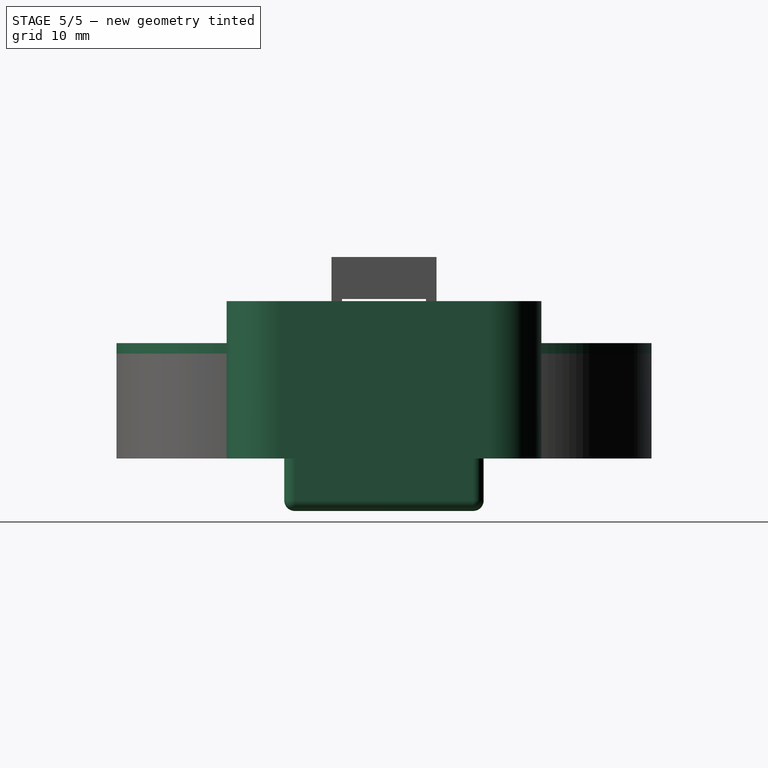
[diagram: stage 5 of 5 — right view after this stage's code; geometry added in this stage tinted green]
FEATURE [Part::Cylinder] Cylinder004  label="Cilindro004"
  Angle = 180
  Height = 1
  Radius = 15
FEATURE [Part::Cylinder] Cylinder005  label="Cilindro005"
  Angle = 180
  Height = 1
  Placement = pos=(0,-21,1) rot=(1,0,0;3.14159rad)
  Radius = 15
FEATURE [Part::Box] Box012  label="Cubo012"
  Height = 3.8
  Length = 30
  Placement = pos=(-18,0.2,0) rot=(0,0,1;0rad)
  Width = 6.5
FEATURE [Part::Cylinder] Cylinder006  label="Cilindro006"
  Angle = 360
  Height = 30
  Placement = pos=(-17,3.4,2) rot=(0,1,0;1.5708rad)
  Radius = 0.6
FEATURE [Part::Box] Box013  label="Cubo013"
  Height = 3.8
  Length = 3.3
  Placement = pos=(12,-0.5,0) rot=(0,0,1;0rad)
  Width = 7.8
FEATURE [Part::MultiFuse] Fusion002004
  Shapes = -> [Box012,Box013]
FEATURE [Sketcher::SketchObject] Sketch002
  sketch-geometry (3):
    g0: LineSegment StartX=0 StartY=0 StartZ=0 EndX=2.00001 EndY=0 EndZ=0
    g1: LineSegment StartX=3.9994 StartY=1.99872 StartZ=0 EndX=3.9994 EndY=3.99963 EndZ=0
    g2: ArcOfCircle CenterX=1.99995 CenterY=1.99946 CenterZ=0 NormalX=0 NormalY=0 NormalZ=1 Radius=1.99946 StartAngle=4.71242 EndAngle=6.28282
  constraints (5):
    c: Coincident(g0,g-1)
    c: PointOnObject(g0,g-1)
    c: Vertical(g1)
    c: Coincident(g2,g1)
    c: Coincident(g2,g0)
FEATURE [Sketcher::SketchObject] Sketch004
  Placement = pos=(0,0,0) rot=(0.57735,0.57735,0.57735;2.0944rad)
  sketch-geometry (1):
    g0: Circle CenterX=0 CenterY=0 CenterZ=0 NormalX=0 NormalY=0 NormalZ=1 Radius=0.6
  constraints (2):
    c: Coincident(g0,g-1)
    c: Radius(g0) = 0.6
FEATURE [Part::Sweep] Sweep
  Frenet = false
  Placement = pos=(11,3.4,2) rot=(-1,0,0;1.5708rad)
  Sections = -> [Sketch004]
  Solid = true
  Spine = -> Sketch002
  Transition = 1
FEATURE [Part::MultiFuse] Fusion002005
  Placement = pos=(-1.3,2.5,0) rot=(0,0,1;0rad)
  Shapes = -> [Cylinder006,Sweep]
FEATURE [Part::Cut] Cut004
  Base = -> Fusion002004
  Placement = pos=(0.3,-7.1,1) rot=(0,0,1;3.14159rad)
  Tool = -> Fusion002005
FEATURE [Part::Box] Box018  label="Cubo018"
  Height = 15
  Length = 5
  Placement = pos=(19,56,-4) rot=(0,0,1;0rad)
  Width = 20
FEATURE [Part::Cylinder] Cylinder018  label="Cilindro018"
  Angle = 180
  Height = 15
  Placement = pos=(21.5,76,-4) rot=(0,0,1;0rad)
  Radius = 5
FEATURE [Part::Cylinder] Cylinder019  label="Cilindro019"
  Angle = 180
  Height = 15
  Placement = pos=(21.5,56,11) rot=(1,0,0;3.14159rad)
  Radius = 5
FEATURE [Part::Box] Box019  label="Cubo019"
  Height = 5
  Length = 4
  Placement = pos=(-2,50,45) rot=(0,0,1;0rad)
  Width = 19
FEATURE [Part::Fillet] Fillet004
  Base = -> Box019
  Edges = 1 edges r=1: [Edge6]
FEATURE [Part::Fillet] Fillet005
  Base = -> Fillet004
  Edges = 1 edges r=1: [Edge15]
FEATURE [Part::Fillet] Fillet006
  Base = -> Fillet005
  Edges = 1 edges r=1: [Edge7]
FEATURE [Part::Fillet] Fillet007
  Base = -> Fillet006
  Edges = 1 edges r=1: [Edge3]
  Placement = pos=(-39,0,0) rot=(0,0,1;0rad)
FEATURE [Part::Cylinder] Cylinder043  label="Cilindro043"
  Angle = 360
  Height = 10
  Placement = pos=(-39,66,48) rot=(0,0,1;0rad)
  Radius = 0.75
FEATURE [Part::Cut] Cut062
  Base = -> Fillet007
  Tool = -> Cylinder042
FEATURE [Part::Cut] Cut063
  Base = -> Cut062
  Placement = pos=(60.5,6.5,-34) rot=(0,0,1;0rad)
  Tool = -> Cylinder043
FEATURE [Part::MultiFuse] Fusion002013
  Placement = pos=(42.4,-76.5,1) rot=(0,1,0;3.14159rad)
  Shapes = -> [Box018,Cylinder018,Cylinder019,Cut063]
FEATURE [Part::Cut] Cut064
  Base = -> Fusion002013
  Tool = -> Fusion002014
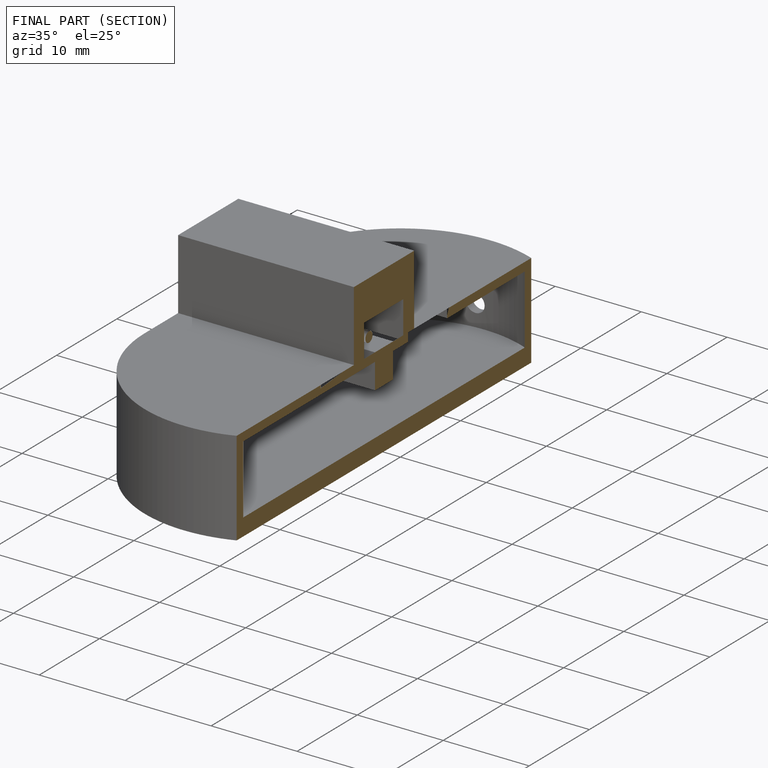
[diagram: finished part — half-section view (interior)]
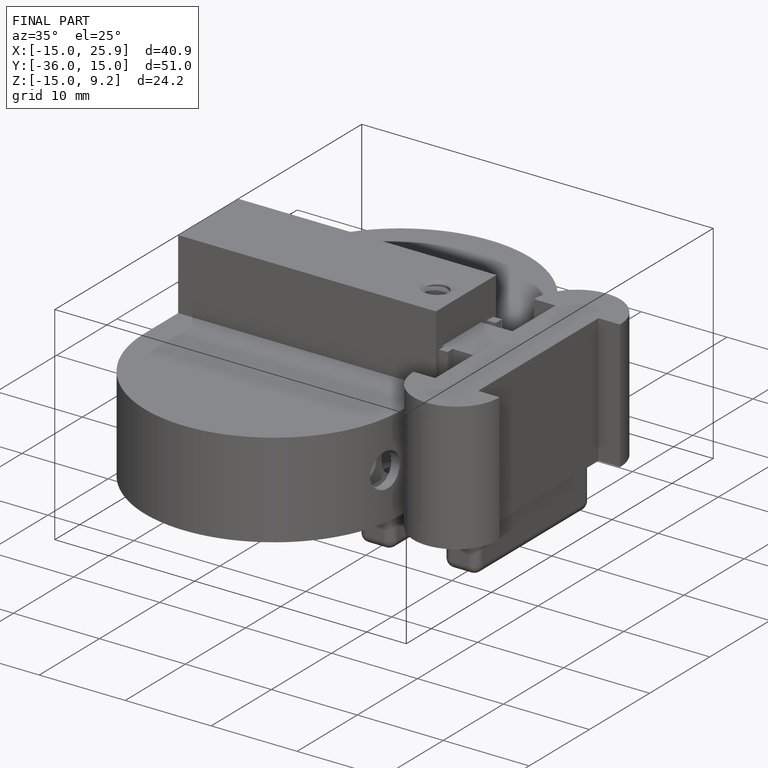
[diagram: finished part — iso view with bounding-box wireframe]
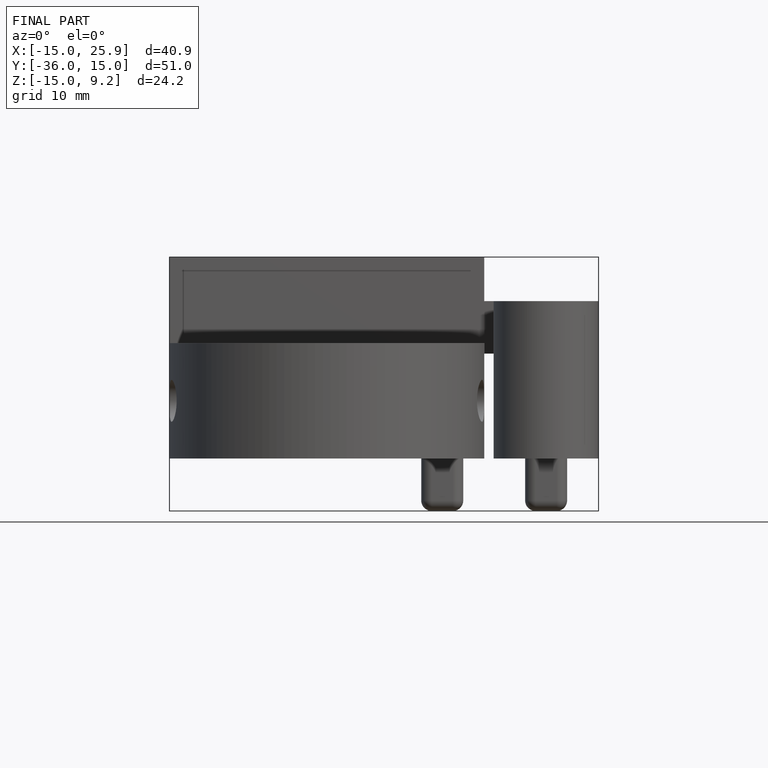
[diagram: finished part — front view with bounding-box wireframe]
